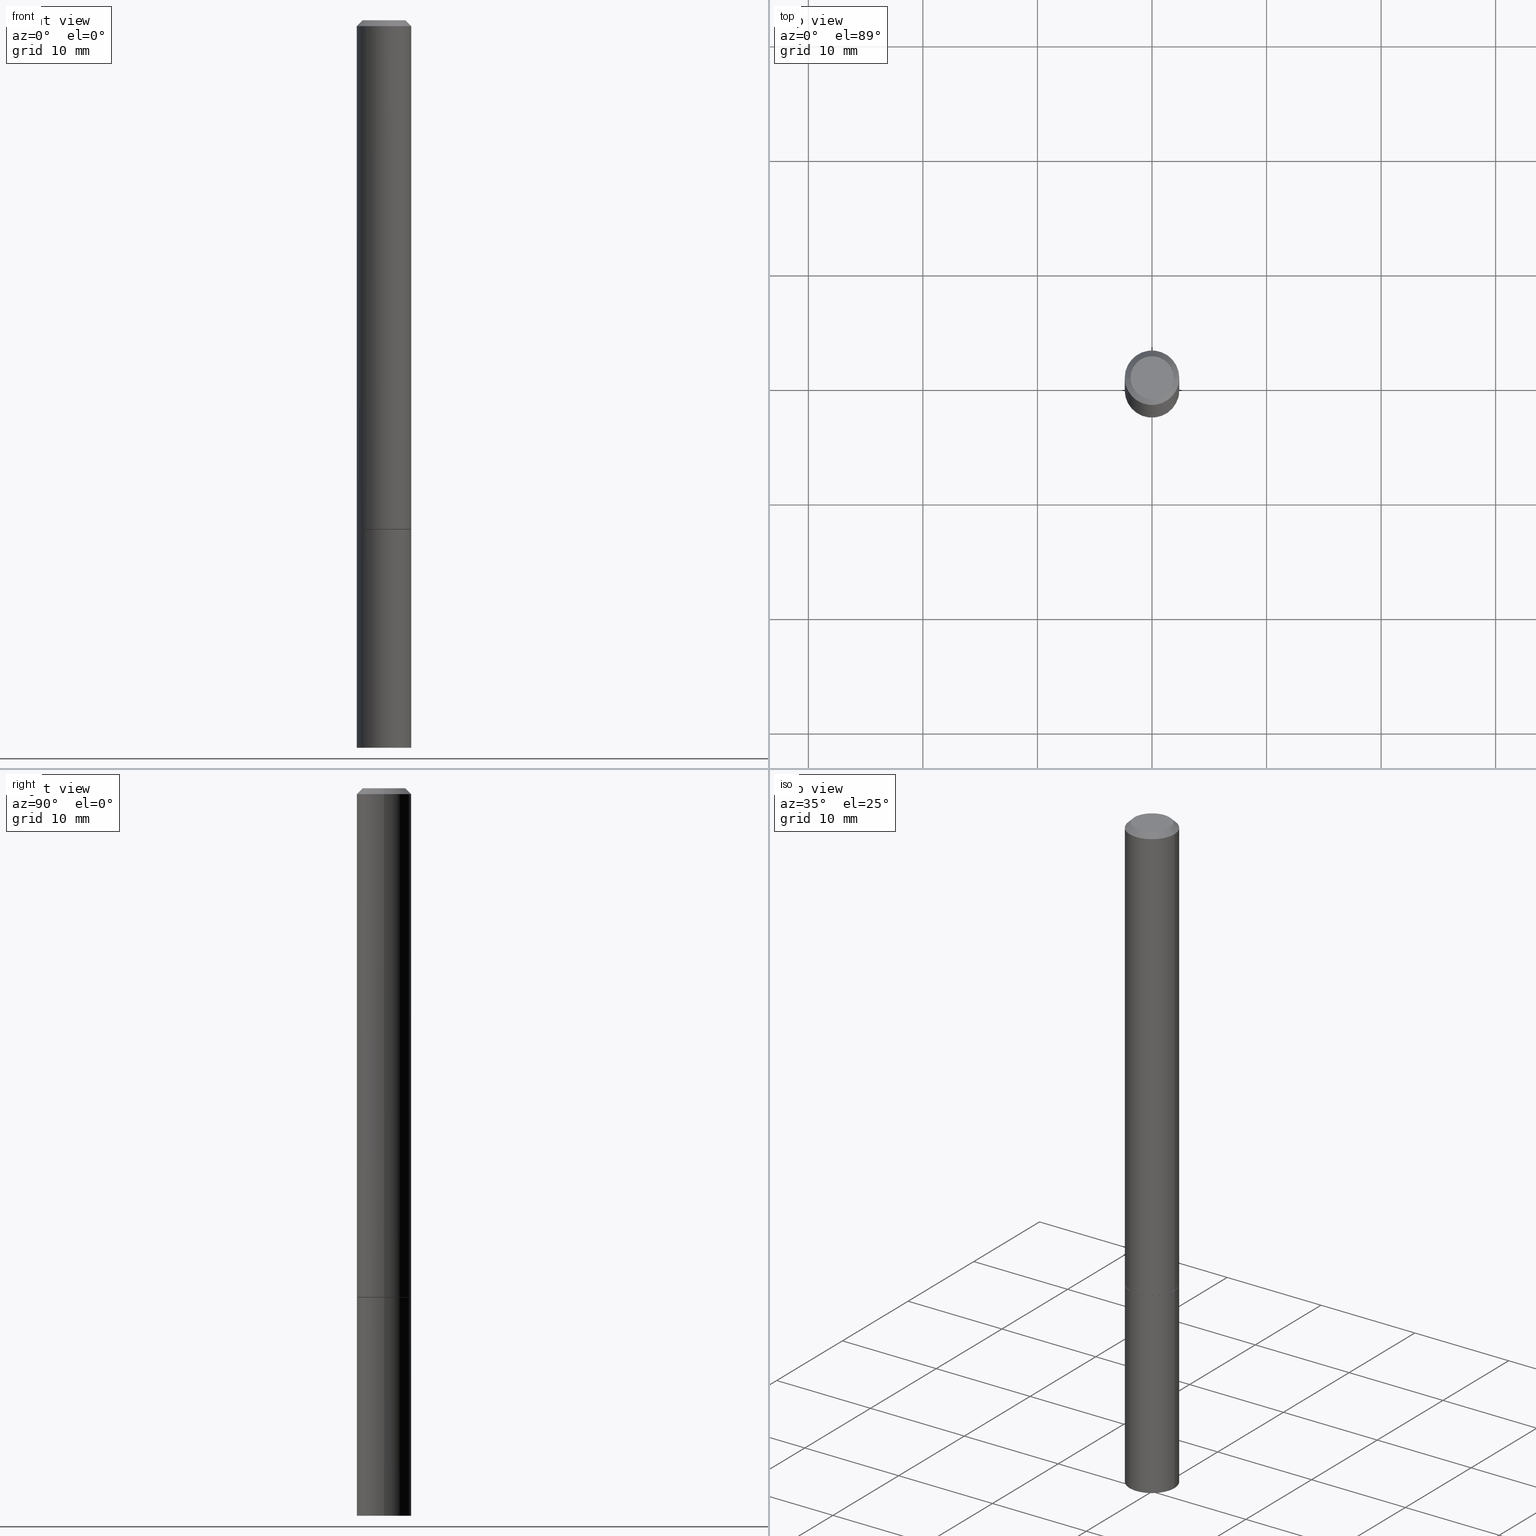
[diagram: canonical four-view strip — front | top / right | iso, engineering-drawing reading convention]
A machine part, canonical four-view strip (front | top / right | iso — engineering-drawing reading convention). The complete STEP part file that produces these views, byte-faithful:
ISO-10303-21;
HEADER;
FILE_DESCRIPTION (( 'STEP AP203' ),
    '1' );
FILE_NAME ('31738.STEP',
    '2023-03-21T20:28:32',
    ( '' ),
    ( '' ),
    'SwSTEP 2.0',
    'SolidWorks 2022',
    '' );
FILE_SCHEMA (( 'CONFIG_CONTROL_DESIGN' ));
ENDSEC;

DATA;
#1 = DIRECTION ( 'NONE',  ( -2.445468806185136597E-29, 3.491481338843145583E-15, 1.000000000000000000 ) ) ;
#2 = VECTOR ( 'NONE', #47, 39.37007874015748854 ) ;
#3 = AXIS2_PLACEMENT_3D ( 'NONE', #77, #265, #242 ) ;
#4 = APPLICATION_PROTOCOL_DEFINITION ( 'international standard', 'config_control_design', 1994, #269 ) ;
#5 = ORIENTED_EDGE ( 'NONE', *, *, #238, .T. ) ;
#6 = MECHANICAL_CONTEXT ( 'NONE', #269, 'mechanical' ) ;
#7 = VECTOR ( 'NONE', #83, 39.37007874015748143 ) ;
#8 = VERTEX_POINT ( 'NONE', #284 ) ;
#9 = ADVANCED_FACE ( 'NONE', ( #289 ), #14, .F. ) ;
#10 = APPROVAL_STATUS ( 'not_yet_approved' ) ;
#11 = ORIENTED_EDGE ( 'NONE', *, *, #185, .T. ) ;
#12 = PRODUCT_DEFINITION_SHAPE ( 'NONE', 'NONE',  #214 ) ;
#13 = PERSON_AND_ORGANIZATION_ROLE ( 'design_supplier' ) ;
#14 = PLANE ( 'NONE',  #306 ) ;
#15 = VERTEX_POINT ( 'NONE', #201 ) ;
#16 = CONICAL_SURFACE ( 'NONE', #286, 751.2258538476485228, 1.518436449235072372 ) ;
#17 = AXIS2_PLACEMENT_3D ( 'NONE', #154, #387, #354 ) ;
#18 = DIRECTION ( 'NONE',  ( 1.000000000000000000, -6.982962677686273021E-15, 0.000000000000000000 ) ) ;
#19 = FACE_OUTER_BOUND ( 'NONE', #253, .T. ) ;
#20 = DIRECTION ( 'NONE',  ( 2.445468806185136597E-29, -3.491481338843145583E-15, -1.000000000000000000 ) ) ;
#21 = CIRCLE ( 'NONE', #151, 0.09375000000000001388 ) ;
#22 = CARTESIAN_POINT ( 'NONE',  ( 4.277124942017804562E-29, -6.106600861636661664E-15, -1.749000000000000110 ) ) ;
#23 = CARTESIAN_POINT ( 'NONE',  ( 4.279570410823989044E-29, -6.110092342975505460E-15, -1.750000000000000222 ) ) ;
#24 = CARTESIAN_POINT ( 'NONE',  ( -0.09274999999999999911, -5.451063955558012544E-15, -1.750000000000000222 ) ) ;
#25 = EDGE_CURVE ( 'NONE', #15, #8, #231, .T. ) ;
#26 = CIRCLE ( 'NONE', #378, 0.07374999999999978795 ) ;
#27 = AXIS2_PLACEMENT_3D ( 'NONE', #132, #283, #135 ) ;
#28 =( NAMED_UNIT ( * ) PLANE_ANGLE_UNIT ( ) SI_UNIT ( $, .RADIAN. ) );
#29 = VERTEX_POINT ( 'NONE', #68 ) ;
#30 = EDGE_CURVE ( 'NONE', #87, #134, #220, .T. ) ;
#31 = DIRECTION ( 'NONE',  ( 1.000000000000000000, -6.982962677686272233E-15, 0.000000000000000000 ) ) ;
#32 = EDGE_CURVE ( 'NONE', #70, #287, #317, .T. ) ;
#33 =( LENGTH_UNIT ( ) NAMED_UNIT ( * ) SI_UNIT ( $, .METRE. ) );
#34 = CARTESIAN_POINT ( 'NONE',  ( 4.890937612370278413E-31, -6.982962677686297772E-17, -0.02000000000000002123 ) ) ;
#35 = CLOSED_SHELL ( 'NONE', ( #104, #316, #149, #335, #235, #155, #9, #204 ) ) ;
#36 = ORIENTED_EDGE ( 'NONE', *, *, #321, .F. ) ;
#37 = APPROVAL_DATE_TIME ( #257, #386 ) ;
#38 = ORIENTED_EDGE ( 'NONE', *, *, #98, .T. ) ;
#39 = CALENDAR_DATE ( 2023, 21, 3 ) ;
#40 = ORIENTED_EDGE ( 'NONE', *, *, #145, .F. ) ;
#41 = CC_DESIGN_PERSON_AND_ORGANIZATION_ASSIGNMENT ( #72, #199, ( #130 ) ) ;
#42 = PERSON_AND_ORGANIZATION_ROLE ( 'creator' ) ;
#43 = VECTOR ( 'NONE', #323, 39.37007874015748143 ) ;
#44 = ORIENTED_EDGE ( 'NONE', *, *, #98, .F. ) ;
#45 = CC_DESIGN_APPROVAL ( #386, ( #214 ) ) ;
#46 = CALENDAR_DATE ( 2023, 21, 3 ) ;
#47 = DIRECTION ( 'NONE',  ( 0.9986295347545742773, -7.033825938272001856E-15, -0.05233595624293820026 ) ) ;
#48 = VERTEX_POINT ( 'NONE', #170 ) ;
#49 = DIRECTION ( 'NONE',  ( -2.445468806185136597E-29, 3.491481338843145583E-15, 1.000000000000000000 ) ) ;
#50 = CONICAL_SURFACE ( 'NONE', #99, 0.09274999999999999911, 0.7853981633974141952 ) ;
#51 = CIRCLE ( 'NONE', #264, 0.09375000000000001388 ) ;
#52 = DIRECTION ( 'NONE',  ( 0.7071067811865464625, -7.319954787623252890E-15, -0.7071067811865486830 ) ) ;
#53 = CARTESIAN_POINT ( 'NONE',  ( 4.890937612370278413E-31, -6.982962677686297772E-17, -0.02000000000000002123 ) ) ;
#54 = DIRECTION ( 'NONE',  ( -1.000000000000000000, 6.982962677686267499E-15, 0.000000000000000000 ) ) ;
#55 = DIRECTION ( 'NONE',  ( 1.000000000000000000, -6.982962677686261189E-15, 0.000000000000000000 ) ) ;
#56 = CARTESIAN_POINT ( 'NONE',  ( 6.113672015462842613E-29, -8.728703347107864943E-15, -2.500000000000000000 ) ) ;
#57 = FACE_OUTER_BOUND ( 'NONE', #110, .T. ) ;
#58 = AXIS2_PLACEMENT_3D ( 'NONE', #389, #127, #334 ) ;
#59 = DIRECTION ( 'NONE',  ( 1.000000000000000000, -6.982962677686265133E-15, 4.876176775795935793E-29 ) ) ;
#60 = CYLINDRICAL_SURFACE ( 'NONE', #332, 0.09375000000000001388 ) ;
#61 = EDGE_LOOP ( 'NONE', ( #38, #192, #139, #281 ) ) ;
#62 =( NAMED_UNIT ( * ) SI_UNIT ( $, .STERADIAN. ) SOLID_ANGLE_UNIT ( ) );
#63 = ORIENTED_EDGE ( 'NONE', *, *, #349, .T. ) ;
#64 = PERSON_AND_ORGANIZATION ( #222, #379 ) ;
#65 = LOCAL_TIME ( 16, 28, 32.00000000000000000, #106 ) ;
#66 = ORIENTED_EDGE ( 'NONE', *, *, #179, .T. ) ;
#67 = CC_DESIGN_PERSON_AND_ORGANIZATION_ASSIGNMENT ( #140, #165, ( #294 ) ) ;
#68 = CARTESIAN_POINT ( 'NONE',  ( -0.07374999999999978795, 5.499083108677917680E-16, -3.723527850031183460E-30 ) ) ;
#69 = COORDINATED_UNIVERSAL_TIME_OFFSET ( 5, 0, .BEHIND. ) ;
#70 = VERTEX_POINT ( 'NONE', #197 ) ;
#71 = ADVANCED_FACE ( 'NONE', ( #164 ), #373, .F. ) ;
#72 = PERSON_AND_ORGANIZATION ( #222, #379 ) ;
#73 = ORIENTED_EDGE ( 'NONE', *, *, #30, .T. ) ;
#74 = ADVANCED_BREP_SHAPE_REPRESENTATION ( '31738', ( #310, #183, #27 ), #244 ) ;
#75 = EDGE_CURVE ( 'NONE', #290, #15, #187, .T. ) ;
#76 = CARTESIAN_POINT ( 'NONE',  ( 6.546527510331302998E-16, 0.09374999999999389377, -1.750000000000000444 ) ) ;
#77 = CARTESIAN_POINT ( 'NONE',  ( 1.023799563225607519E-27, -1.461714441287113679E-13, -41.86516551084969961 ) ) ;
#78 = LINE ( 'NONE', #322, #320 ) ;
#79 = AXIS2_PLACEMENT_3D ( 'NONE', #382, #118, #82 ) ;
#80 = PRODUCT_DEFINITION_FORMATION_WITH_SPECIFIED_SOURCE ( 'ANY', '', #294, .NOT_KNOWN. ) ;
#81 = CARTESIAN_POINT ( 'NONE',  ( 0.000000000000000000, 0.000000000000000000, 0.000000000000000000 ) ) ;
#82 = DIRECTION ( 'NONE',  ( 1.000000000000000000, -6.982962677686267499E-15, 0.000000000000000000 ) ) ;
#83 = DIRECTION ( 'NONE',  ( -0.7071067811865464625, 2.468850131082245228E-15, -0.7071067811865486830 ) ) ;
#84 = AXIS2_PLACEMENT_3D ( 'NONE', #148, #295, #18 ) ;
#85 = LOCAL_TIME ( 16, 28, 32.00000000000000000, #163 ) ;
#86 = CARTESIAN_POINT ( 'NONE',  ( 0.000000000000000000, 0.000000000000000000, 0.000000000000000000 ) ) ;
#87 = VERTEX_POINT ( 'NONE', #177 ) ;
#88 = DIRECTION ( 'NONE',  ( -2.445468806185136877E-29, 3.491481338843145188E-15, 1.000000000000000000 ) ) ;
#89 = ORIENTED_EDGE ( 'NONE', *, *, #246, .F. ) ;
#90 = CIRCLE ( 'NONE', #374, 0.09375000000000001388 ) ;
#91 = CARTESIAN_POINT ( 'NONE',  ( -0.09374999999999984734, -8.074050596074776650E-15, -2.500000000000000000 ) ) ;
#92 = ADVANCED_FACE ( 'NONE', ( #182 ), #16, .F. ) ;
#93 = ORIENTED_EDGE ( 'NONE', *, *, #120, .F. ) ;
#94 =( CONVERSION_BASED_UNIT ( 'INCH', #362 ) LENGTH_UNIT ( ) NAMED_UNIT ( #121 ) );
#95 = ORIENTED_EDGE ( 'NONE', *, *, #209, .F. ) ;
#96 = DATE_TIME_ROLE ( 'creation_date' ) ;
#97 = ORIENTED_EDGE ( 'NONE', *, *, #241, .F. ) ;
#98 = EDGE_CURVE ( 'NONE', #15, #290, #383, .T. ) ;
#99 = AXIS2_PLACEMENT_3D ( 'NONE', #263, #152, #291 ) ;
#100 = PERSON_AND_ORGANIZATION ( #222, #379 ) ;
#101 = CONICAL_SURFACE ( 'NONE', #3, 751.2258538476485228, 1.518436449235072372 ) ;
#102 = ORIENTED_EDGE ( 'NONE', *, *, #344, .T. ) ;
#103 = APPROVAL_ROLE ( '' ) ;
#104 = ADVANCED_FACE ( 'NONE', ( #347 ), #50, .T. ) ;
#105 = DIRECTION ( 'NONE',  ( 1.000000000000000000, -6.982962677686273021E-15, 0.000000000000000000 ) ) ;
#106 = COORDINATED_UNIVERSAL_TIME_OFFSET ( 5, 0, .BEHIND. ) ;
#107 = EDGE_CURVE ( 'NONE', #29, #358, #180, .T. ) ;
#108 = DIRECTION ( 'NONE',  ( 1.000000000000000000, -6.982962677686265922E-15, 4.876176775795935793E-29 ) ) ;
#109 = SECURITY_CLASSIFICATION_LEVEL ( 'unclassified' ) ;
#110 = EDGE_LOOP ( 'NONE', ( #300, #143, #141, #249 ) ) ;
#111 = AXIS2_PLACEMENT_3D ( 'NONE', #34, #159, #184 ) ;
#112 = DIRECTION ( 'NONE',  ( 1.000000000000000000, -6.982962677686261189E-15, 0.000000000000000000 ) ) ;
#113 = DIRECTION ( 'NONE',  ( 1.000000000000000000, -6.982962677686272233E-15, 0.000000000000000000 ) ) ;
#114 = CC_DESIGN_PERSON_AND_ORGANIZATION_ASSIGNMENT ( #288, #42, ( #80 ) ) ;
#115 = LINE ( 'NONE', #298, #43 ) ;
#116 = CIRCLE ( 'NONE', #79, 0.09374999999999975020 ) ;
#117 = AXIS2_PLACEMENT_3D ( 'NONE', #191, #299, #215 ) ;
#118 = DIRECTION ( 'NONE',  ( -2.445468806185136597E-29, 3.491481338843145583E-15, 1.000000000000000000 ) ) ;
#119 = PLANE ( 'NONE',  #353 ) ;
#120 = EDGE_CURVE ( 'NONE', #358, #219, #116, .T. ) ;
#121 = DIMENSIONAL_EXPONENTS ( 1.000000000000000000, 0.000000000000000000, 0.000000000000000000, 0.000000000000000000, 0.000000000000000000, 0.000000000000000000, 0.000000000000000000 ) ;
#122 = CARTESIAN_POINT ( 'NONE',  ( 4.277124942017804562E-29, -6.106600861636661664E-15, -1.749000000000000110 ) ) ;
#123 = AXIS2_PLACEMENT_3D ( 'NONE', #240, #297, #327 ) ;
#124 = LINE ( 'NONE', #276, #136 ) ;
#125 = ORIENTED_EDGE ( 'NONE', *, *, #218, .T. ) ;
#126 = EDGE_CURVE ( 'NONE', #48, #29, #26, .T. ) ;
#127 = DIRECTION ( 'NONE',  ( -2.445468806185136597E-29, 3.491481338843145583E-15, 1.000000000000000000 ) ) ;
#128 = ORIENTED_EDGE ( 'NONE', *, *, #209, .T. ) ;
#129 = VECTOR ( 'NONE', #196, 39.37007874015748854 ) ;
#130 = SECURITY_CLASSIFICATION ( '', '', #109 ) ;
#131 = CARTESIAN_POINT ( 'NONE',  ( -0.09274999999999999911, -5.445765501209790142E-15, -1.750000000000000222 ) ) ;
#132 = CARTESIAN_POINT ( 'NONE',  ( 0.000000000000000000, 0.000000000000000000, 0.000000000000000000 ) ) ;
#133 = COORDINATED_UNIVERSAL_TIME_OFFSET ( 5, 0, .BEHIND. ) ;
#134 = VERTEX_POINT ( 'NONE', #237 ) ;
#135 = DIRECTION ( 'NONE',  ( 1.000000000000000000, 0.000000000000000000, 0.000000000000000000 ) ) ;
#136 = VECTOR ( 'NONE', #270, 39.37007874015748143 ) ;
#137 = DIRECTION ( 'NONE',  ( -1.000000000000000000, 6.982962677686265922E-15, -4.876176775795935793E-29 ) ) ;
#138 = APPROVAL_STATUS ( 'not_yet_approved' ) ;
#139 = ORIENTED_EDGE ( 'NONE', *, *, #179, .F. ) ;
#140 = PERSON_AND_ORGANIZATION ( #222, #379 ) ;
#141 = ORIENTED_EDGE ( 'NONE', *, *, #107, .T. ) ;
#142 = AXIS2_PLACEMENT_3D ( 'NONE', #178, #352, #150 ) ;
#143 = ORIENTED_EDGE ( 'NONE', *, *, #349, .F. ) ;
#144 = CIRCLE ( 'NONE', #17, 0.09374999999999975020 ) ;
#145 = EDGE_CURVE ( 'NONE', #287, #134, #115, .T. ) ;
#146 = FACE_OUTER_BOUND ( 'NONE', #186, .T. ) ;
#147 = ADVANCED_FACE ( 'NONE', ( #146 ), #377, .T. ) ;
#148 = CARTESIAN_POINT ( 'NONE',  ( 4.279570410823989044E-29, -6.110092342975505460E-15, -1.750000000000000222 ) ) ;
#149 = ADVANCED_FACE ( 'NONE', ( #210 ), #200, .T. ) ;
#150 = DIRECTION ( 'NONE',  ( 1.000000000000000000, -6.982962677686273021E-15, 0.000000000000000000 ) ) ;
#151 = AXIS2_PLACEMENT_3D ( 'NONE', #56, #190, #31 ) ;
#152 = DIRECTION ( 'NONE',  ( -2.445468806185136597E-29, 3.491481338843145583E-15, 1.000000000000000000 ) ) ;
#153 = DIRECTION ( 'NONE',  ( -2.445468806185136597E-29, 3.491481338843145583E-15, 1.000000000000000000 ) ) ;
#154 = CARTESIAN_POINT ( 'NONE',  ( 4.890937612370278413E-31, -6.982962677686297772E-17, -0.02000000000000002123 ) ) ;
#155 = ADVANCED_FACE ( 'NONE', ( #350 ), #250, .T. ) ;
#156 = DIRECTION ( 'NONE',  ( -0.7071067811865232589, 7.493145998870265808E-15, 0.7071067811865715536 ) ) ;
#157 = LINE ( 'NONE', #303, #239 ) ;
#158 = CYLINDRICAL_SURFACE ( 'NONE', #166, 0.09374999999999988898 ) ;
#159 = DIRECTION ( 'NONE',  ( 2.445468806185136597E-29, -3.491481338843145583E-15, -1.000000000000000000 ) ) ;
#160 = EDGE_LOOP ( 'NONE', ( #66, #102, #365, #221 ) ) ;
#161 = APPROVAL_DATE_TIME ( #309, #168 ) ;
#162 = ORIENTED_EDGE ( 'NONE', *, *, #145, .T. ) ;
#163 = COORDINATED_UNIVERSAL_TIME_OFFSET ( 5, 0, .BEHIND. ) ;
#164 = FACE_OUTER_BOUND ( 'NONE', #251, .T. ) ;
#165 = PERSON_AND_ORGANIZATION_ROLE ( 'design_owner' ) ;
#166 = AXIS2_PLACEMENT_3D ( 'NONE', #213, #359, #59 ) ;
#167 = EDGE_LOOP ( 'NONE', ( #274, #315, #95 ) ) ;
#168 = APPROVAL ( #195, 'UNSPECIFIED' ) ;
#169 = DATE_TIME_ROLE ( 'classification_date' ) ;
#170 = CARTESIAN_POINT ( 'NONE',  ( 0.07374999999999978795, -6.094815207017957253E-16, 3.931526600461595245E-30 ) ) ;
#171 = DATE_AND_TIME ( #230, #181 ) ;
#172 = ADVANCED_FACE ( 'NONE', ( #324 ), #101, .F. ) ;
#173 = EDGE_LOOP ( 'NONE', ( #355, #229, #333, #40 ) ) ;
#174 = CLOSED_SHELL ( 'NONE', ( #245, #172, #92, #147, #71 ) ) ;
#175 = EDGE_CURVE ( 'NONE', #134, #87, #51, .T. ) ;
#176 = CARTESIAN_POINT ( 'NONE',  ( 6.113672015462842613E-29, -8.728703347107864943E-15, -2.500000000000000000 ) ) ;
#177 = CARTESIAN_POINT ( 'NONE',  ( -0.09375000000000001388, -6.753264030266591277E-15, -1.750000000000000222 ) ) ;
#178 = CARTESIAN_POINT ( 'NONE',  ( 4.279570410823989044E-29, -6.110092342975505460E-15, -1.750000000000000222 ) ) ;
#179 = EDGE_CURVE ( 'NONE', #8, #363, #326, .T. ) ;
#180 = LINE ( 'NONE', #243, #7 ) ;
#181 = LOCAL_TIME ( 16, 28, 32.00000000000000000, #371 ) ;
#182 = FACE_OUTER_BOUND ( 'NONE', #372, .T. ) ;
#183 = MANIFOLD_SOLID_BREP ( 'Body-Move/Copy2[2]', #35 ) ;
#184 = DIRECTION ( 'NONE',  ( -1.000000000000000000, 6.982962677686267499E-15, 0.000000000000000000 ) ) ;
#185 = EDGE_CURVE ( 'NONE', #363, #8, #308, .T. ) ;
#186 = EDGE_LOOP ( 'NONE', ( #89, #128, #162, #223 ) ) ;
#187 = CIRCLE ( 'NONE', #232, 0.09274999999999999911 ) ;
#188 = AXIS2_PLACEMENT_3D ( 'NONE', #53, #20, #54 ) ;
#189 = CARTESIAN_POINT ( 'NONE',  ( 0.09374999999999988898, -6.546527510330866166E-16, 4.571415727308684201E-30 ) ) ;
#190 = DIRECTION ( 'NONE',  ( -2.445468806185136597E-29, 3.491481338843145583E-15, 1.000000000000000000 ) ) ;
#191 = CARTESIAN_POINT ( 'NONE',  ( 0.000000000000000000, 0.000000000000000000, 0.000000000000000000 ) ) ;
#192 = ORIENTED_EDGE ( 'NONE', *, *, #241, .T. ) ;
#193 = AXIS2_PLACEMENT_3D ( 'NONE', #76, #311, #137 ) ;
#194 = CC_DESIGN_SECURITY_CLASSIFICATION ( #130, ( #80 ) ) ;
#195 = APPROVAL_STATUS ( 'not_yet_approved' ) ;
#196 = DIRECTION ( 'NONE',  ( 0.7071067811865232589, -2.468850131082003836E-15, 0.7071067811865715536 ) ) ;
#197 = CARTESIAN_POINT ( 'NONE',  ( 6.101550147147509967E-29, -8.711701726785852134E-15, -2.495086770692215516 ) ) ;
#198 = ORIENTED_EDGE ( 'NONE', *, *, #75, .T. ) ;
#199 = PERSON_AND_ORGANIZATION_ROLE ( 'classification_officer' ) ;
#200 = CONICAL_SURFACE ( 'NONE', #188, 0.09374999999999975020, 0.7853981633974467247 ) ;
#201 = CARTESIAN_POINT ( 'NONE',  ( 0.09274999999999999911, -6.757762131330906950E-15, -1.750000000000000222 ) ) ;
#202 = CALENDAR_DATE ( 2023, 21, 3 ) ;
#203 = ORIENTED_EDGE ( 'NONE', *, *, #32, .F. ) ;
#204 = ADVANCED_FACE ( 'NONE', ( #262 ), #119, .F. ) ;
#205 = DIRECTION ( 'NONE',  ( 2.438088387897960049E-29, -3.491481338843145188E-15, -1.000000000000000000 ) ) ;
#206 = VECTOR ( 'NONE', #217, 39.37007874015748854 ) ;
#207 = DIRECTION ( 'NONE',  ( 1.000000000000000000, -6.982962677686266711E-15, 4.876176775795936914E-29 ) ) ;
#208 = CARTESIAN_POINT ( 'NONE',  ( 1.023799563225607519E-27, -1.461714441287113679E-13, -41.86516551084969961 ) ) ;
#209 = EDGE_CURVE ( 'NONE', #390, #287, #90, .T. ) ;
#210 = FACE_OUTER_BOUND ( 'NONE', #361, .T. ) ;
#211 = DIRECTION ( 'NONE',  ( -2.445468806185136597E-29, 3.491481338843145583E-15, 1.000000000000000000 ) ) ;
#212 = LOCAL_TIME ( 16, 28, 32.00000000000000000, #69 ) ;
#213 = CARTESIAN_POINT ( 'NONE',  ( 0.000000000000000000, 0.000000000000000000, 0.000000000000000000 ) ) ;
#214 = PRODUCT_DEFINITION ( 'UNKNOWN', '', #80, #338 ) ;
#215 = DIRECTION ( 'NONE',  ( 1.000000000000000000, -6.982962677686265133E-15, 4.876176775795935793E-29 ) ) ;
#216 = ORIENTED_EDGE ( 'NONE', *, *, #25, .T. ) ;
#217 = DIRECTION ( 'NONE',  ( -0.9986295347545742773, 6.790662755453662155E-15, -0.05233595624293820026 ) ) ;
#218 = EDGE_CURVE ( 'NONE', #48, #219, #78, .T. ) ;
#219 = VERTEX_POINT ( 'NONE', #292 ) ;
#220 = CIRCLE ( 'NONE', #325, 0.09375000000000001388 ) ;
#221 = ORIENTED_EDGE ( 'NONE', *, *, #254, .F. ) ;
#222 = PERSON ( 'UNSPECIFIED', 'UNSPECIFIED', 'UNSPECIFIED', ('UNSPECIFIED'), ('UNSPECIFIED'), ('UNSPECIFIED') ) ;
#223 = ORIENTED_EDGE ( 'NONE', *, *, #30, .F. ) ;
#224 = PERSON_AND_ORGANIZATION_ROLE ( 'creator' ) ;
#225 = APPROVAL_PERSON_ORGANIZATION ( #314, #386, #103 ) ;
#226 = ORIENTED_EDGE ( 'NONE', *, *, #254, .T. ) ;
#227 = CC_DESIGN_DATE_AND_TIME_ASSIGNMENT ( #228, #96, ( #214 ) ) ;
#228 = DATE_AND_TIME ( #39, #255 ) ;
#229 = ORIENTED_EDGE ( 'NONE', *, *, #246, .T. ) ;
#230 = CALENDAR_DATE ( 2023, 21, 3 ) ;
#231 = LINE ( 'NONE', #367, #129 ) ;
#232 = AXIS2_PLACEMENT_3D ( 'NONE', #256, #370, #105 ) ;
#233 = CONICAL_SURFACE ( 'NONE', #111, 0.09374999999999975020, 0.7853981633974467247 ) ;
#234 = ORIENTED_EDGE ( 'NONE', *, *, #175, .T. ) ;
#235 = ADVANCED_FACE ( 'NONE', ( #19 ), #247, .T. ) ;
#236 = CARTESIAN_POINT ( 'NONE',  ( 1.528281196370442913E-19, -8.711548898666276345E-15, -2.495086770692215516 ) ) ;
#237 = CARTESIAN_POINT ( 'NONE',  ( 0.09375000000000001388, -6.764745094008592175E-15, -1.750000000000000222 ) ) ;
#238 = EDGE_CURVE ( 'NONE', #219, #358, #144, .T. ) ;
#239 = VECTOR ( 'NONE', #273, 39.37007874015748143 ) ;
#240 = CARTESIAN_POINT ( 'NONE',  ( 0.000000000000000000, 0.000000000000000000, 0.000000000000000000 ) ) ;
#241 = EDGE_CURVE ( 'NONE', #290, #363, #357, .T. ) ;
#242 = DIRECTION ( 'NONE',  ( -1.000000000000000000, 6.982962677686266711E-15, 0.000000000000000000 ) ) ;
#243 = CARTESIAN_POINT ( 'NONE',  ( -0.09374999999999975020, 5.848231242562228254E-16, -0.02000000000000002123 ) ) ;
#244 =( GEOMETRIC_REPRESENTATION_CONTEXT ( 3 ) GLOBAL_UNCERTAINTY_ASSIGNED_CONTEXT ( ( #275 ) ) GLOBAL_UNIT_ASSIGNED_CONTEXT ( ( #94, #28, #62 ) ) REPRESENTATION_CONTEXT ( 'NONE', 'WORKASPACE' ) );
#245 = ADVANCED_FACE ( 'NONE', ( #328 ), #60, .T. ) ;
#246 = EDGE_CURVE ( 'NONE', #390, #87, #124, .T. ) ;
#247 = CYLINDRICAL_SURFACE ( 'NONE', #117, 0.09374999999999988898 ) ;
#248 = FACE_OUTER_BOUND ( 'NONE', #160, .T. ) ;
#249 = ORIENTED_EDGE ( 'NONE', *, *, #120, .T. ) ;
#250 = CONICAL_SURFACE ( 'NONE', #142, 0.09274999999999999911, 0.7853981633974141952 ) ;
#251 = EDGE_LOOP ( 'NONE', ( #234, #73 ) ) ;
#252 = APPROVAL_DATE_TIME ( #171, #282 ) ;
#253 = EDGE_LOOP ( 'NONE', ( #388, #11, #226, #93 ) ) ;
#254 = EDGE_CURVE ( 'NONE', #8, #219, #385, .T. ) ;
#255 = LOCAL_TIME ( 16, 28, 32.00000000000000000, #133 ) ;
#256 = CARTESIAN_POINT ( 'NONE',  ( 4.279570410823989044E-29, -6.110092342975505460E-15, -1.750000000000000222 ) ) ;
#257 = DATE_AND_TIME ( #202, #65 ) ;
#258 = CARTESIAN_POINT ( 'NONE',  ( 4.279570410823989044E-29, -6.110092342975505460E-15, -1.750000000000000222 ) ) ;
#259 = CALENDAR_DATE ( 2023, 21, 3 ) ;
#260 = CARTESIAN_POINT ( 'NONE',  ( 4.279570410823989044E-29, -6.110092342975505460E-15, -1.750000000000000222 ) ) ;
#261 = EDGE_LOOP ( 'NONE', ( #97, #198, #216, #375 ) ) ;
#262 = FACE_OUTER_BOUND ( 'NONE', #279, .T. ) ;
#263 = CARTESIAN_POINT ( 'NONE',  ( 4.279570410823989044E-29, -6.110092342975505460E-15, -1.750000000000000222 ) ) ;
#264 = AXIS2_PLACEMENT_3D ( 'NONE', #23, #49, #55 ) ;
#265 = DIRECTION ( 'NONE',  ( 2.445468806185136597E-29, -3.491481338843145583E-15, -1.000000000000000000 ) ) ;
#266 = DIRECTION ( 'NONE',  ( -2.445468806185136597E-29, 3.491481338843145583E-15, 1.000000000000000000 ) ) ;
#267 = DIRECTION ( 'NONE',  ( 1.000000000000000000, -6.982962677686261189E-15, 0.000000000000000000 ) ) ;
#268 = EDGE_CURVE ( 'NONE', #70, #390, #301, .T. ) ;
#269 = APPLICATION_CONTEXT ( 'configuration controlled 3d designs of mechanical parts and assemblies' ) ;
#270 = DIRECTION ( 'NONE',  ( -2.445468806185136877E-29, 3.491481338843145188E-15, 1.000000000000000000 ) ) ;
#271 = AXIS2_PLACEMENT_3D ( 'NONE', #122, #266, #345 ) ;
#272 = CARTESIAN_POINT ( 'NONE',  ( -0.09375000000000001388, -2.422081429431664218E-15, -1.749000000000000110 ) ) ;
#273 = DIRECTION ( 'NONE',  ( -2.445468806185136877E-29, 3.491481338843145188E-15, 1.000000000000000000 ) ) ;
#274 = ORIENTED_EDGE ( 'NONE', *, *, #268, .F. ) ;
#275 = UNCERTAINTY_MEASURE_WITH_UNIT (LENGTH_MEASURE( 1.000000000000000082E-05 ), #94, 'distance_accuracy_value', 'NONE');
#276 = CARTESIAN_POINT ( 'NONE',  ( -0.09375000000000001388, 6.661338147750940229E-16, -4.611501647113973995E-30 ) ) ;
#277 = VECTOR ( 'NONE', #156, 39.37007874015748854 ) ;
#278 = CARTESIAN_POINT ( 'NONE',  ( -0.09374999999999975020, 5.848231242562228254E-16, -0.02000000000000002123 ) ) ;
#279 = EDGE_LOOP ( 'NONE', ( #63, #304 ) ) ;
#280 = APPROVAL_ROLE ( '' ) ;
#281 = ORIENTED_EDGE ( 'NONE', *, *, #25, .F. ) ;
#282 = APPROVAL ( #138, 'UNSPECIFIED' ) ;
#283 = DIRECTION ( 'NONE',  ( 0.000000000000000000, 0.000000000000000000, 1.000000000000000000 ) ) ;
#284 = CARTESIAN_POINT ( 'NONE',  ( 0.09375000000000001388, -6.761253612669749168E-15, -1.749000000000000110 ) ) ;
#285 = APPLICATION_CONTEXT ( 'configuration controlled 3d designs of mechanical parts and assemblies' ) ;
#286 = AXIS2_PLACEMENT_3D ( 'NONE', #208, #351, #380 ) ;
#287 = VERTEX_POINT ( 'NONE', #330 ) ;
#288 = PERSON_AND_ORGANIZATION ( #222, #379 ) ;
#289 = FACE_OUTER_BOUND ( 'NONE', #318, .T. ) ;
#290 = VERTEX_POINT ( 'NONE', #131 ) ;
#291 = DIRECTION ( 'NONE',  ( 1.000000000000000000, -6.982962677686273021E-15, 0.000000000000000000 ) ) ;
#292 = CARTESIAN_POINT ( 'NONE',  ( 0.09374999999999975020, -7.130013140679423114E-16, -0.02000000000000002123 ) ) ;
#293 = PRODUCT_RELATED_PRODUCT_CATEGORY ( 'detail', '', ( #294 ) ) ;
#294 = PRODUCT ( '31738', '31738', '', ( #6 ) ) ;
#295 = DIRECTION ( 'NONE',  ( -2.445468806185136597E-29, 3.491481338843145583E-15, 1.000000000000000000 ) ) ;
#296 = CIRCLE ( 'NONE', #58, 0.07374999999999978795 ) ;
#297 = DIRECTION ( 'NONE',  ( -2.445468806185136597E-29, 3.491481338843145583E-15, 1.000000000000000000 ) ) ;
#298 = CARTESIAN_POINT ( 'NONE',  ( 0.09375000000000001388, -6.546527510330875041E-16, 4.571415727308690506E-30 ) ) ;
#299 = DIRECTION ( 'NONE',  ( -2.445468806185136597E-29, 3.491481338843145583E-15, 1.000000000000000000 ) ) ;
#300 = ORIENTED_EDGE ( 'NONE', *, *, #218, .F. ) ;
#301 = LINE ( 'NONE', #329, #206 ) ;
#302 = ORIENTED_EDGE ( 'NONE', *, *, #126, .F. ) ;
#303 = CARTESIAN_POINT ( 'NONE',  ( -0.09374999999999988898, 6.661338147750931354E-16, -4.611501647113968390E-30 ) ) ;
#304 = ORIENTED_EDGE ( 'NONE', *, *, #126, .T. ) ;
#305 = DIRECTION ( 'NONE',  ( 1.000000000000000000, -6.982962677686265922E-15, 4.876176775795935793E-29 ) ) ;
#306 = AXIS2_PLACEMENT_3D ( 'NONE', #258, #343, #108 ) ;
#307 = CC_DESIGN_APPROVAL ( #282, ( #130 ) ) ;
#308 = CIRCLE ( 'NONE', #271, 0.09375000000000001388 ) ;
#309 = DATE_AND_TIME ( #259, #212 ) ;
#310 = MANIFOLD_SOLID_BREP ( 'Body-Move/Copy2[1]', #174 ) ;
#311 = DIRECTION ( 'NONE',  ( 2.438088387897960049E-29, -3.491481338843145188E-15, -1.000000000000000000 ) ) ;
#312 = DATE_AND_TIME ( #46, #85 ) ;
#313 = ORIENTED_EDGE ( 'NONE', *, *, #268, .T. ) ;
#314 = PERSON_AND_ORGANIZATION ( #222, #379 ) ;
#315 = ORIENTED_EDGE ( 'NONE', *, *, #32, .T. ) ;
#316 = ADVANCED_FACE ( 'NONE', ( #248 ), #158, .T. ) ;
#317 = LINE ( 'NONE', #236, #2 ) ;
#318 = EDGE_LOOP ( 'NONE', ( #44, #337 ) ) ;
#319 = DIRECTION ( 'NONE',  ( -1.000000000000000000, 6.982962677686265922E-15, -4.876176775795935793E-29 ) ) ;
#320 = VECTOR ( 'NONE', #52, 39.37007874015748143 ) ;
#321 = EDGE_CURVE ( 'NONE', #287, #390, #21, .T. ) ;
#322 = CARTESIAN_POINT ( 'NONE',  ( 0.09374999999999975020, -7.130013140679423114E-16, -0.02000000000000002123 ) ) ;
#323 = DIRECTION ( 'NONE',  ( -2.445468806185136877E-29, 3.491481338843145188E-15, 1.000000000000000000 ) ) ;
#324 = FACE_OUTER_BOUND ( 'NONE', #167, .T. ) ;
#325 = AXIS2_PLACEMENT_3D ( 'NONE', #260, #341, #112 ) ;
#326 = CIRCLE ( 'NONE', #368, 0.09375000000000001388 ) ;
#327 = DIRECTION ( 'NONE',  ( 1.000000000000000000, -6.982962677686265922E-15, 4.876176775795935793E-29 ) ) ;
#328 = FACE_OUTER_BOUND ( 'NONE', #173, .T. ) ;
#329 = CARTESIAN_POINT ( 'NONE',  ( -1.528281195150111589E-19, -8.711548898666276345E-15, -2.495086770692215516 ) ) ;
#330 = CARTESIAN_POINT ( 'NONE',  ( 0.09374999999999984734, -9.371875034398942871E-15, -2.500000000000000000 ) ) ;
#331 = CC_DESIGN_PERSON_AND_ORGANIZATION_ASSIGNMENT ( #336, #13, ( #80 ) ) ;
#332 = AXIS2_PLACEMENT_3D ( 'NONE', #86, #1, #305 ) ;
#333 = ORIENTED_EDGE ( 'NONE', *, *, #175, .F. ) ;
#334 = DIRECTION ( 'NONE',  ( 1.000000000000000000, -6.982962677686266711E-15, 4.876176775795936914E-29 ) ) ;
#335 = ADVANCED_FACE ( 'NONE', ( #57 ), #233, .T. ) ;
#336 = PERSON_AND_ORGANIZATION ( #222, #379 ) ;
#337 = ORIENTED_EDGE ( 'NONE', *, *, #75, .F. ) ;
#338 = DESIGN_CONTEXT ( 'detailed design', #285, 'design' ) ;
#339 = APPROVAL_ROLE ( '' ) ;
#340 = ORIENTED_EDGE ( 'NONE', *, *, #107, .F. ) ;
#341 = DIRECTION ( 'NONE',  ( -2.445468806185136597E-29, 3.491481338843145583E-15, 1.000000000000000000 ) ) ;
#342 = APPROVAL_PERSON_ORGANIZATION ( #64, #282, #280 ) ;
#343 = DIRECTION ( 'NONE',  ( -2.438088387897960049E-29, 3.491481338843145188E-15, 1.000000000000000000 ) ) ;
#344 = EDGE_CURVE ( 'NONE', #363, #358, #157, .T. ) ;
#345 = DIRECTION ( 'NONE',  ( 1.000000000000000000, -6.982962677686261189E-15, 0.000000000000000000 ) ) ;
#346 = CC_DESIGN_PERSON_AND_ORGANIZATION_ASSIGNMENT ( #364, #224, ( #214 ) ) ;
#347 = FACE_OUTER_BOUND ( 'NONE', #61, .T. ) ;
#348 = CC_DESIGN_APPROVAL ( #168, ( #80 ) ) ;
#349 = EDGE_CURVE ( 'NONE', #29, #48, #296, .T. ) ;
#350 = FACE_OUTER_BOUND ( 'NONE', #261, .T. ) ;
#351 = DIRECTION ( 'NONE',  ( 2.445468806185136597E-29, -3.491481338843145583E-15, -1.000000000000000000 ) ) ;
#352 = DIRECTION ( 'NONE',  ( -2.445468806185136597E-29, 3.491481338843145583E-15, 1.000000000000000000 ) ) ;
#353 = AXIS2_PLACEMENT_3D ( 'NONE', #381, #205, #319 ) ;
#354 = DIRECTION ( 'NONE',  ( 1.000000000000000000, -6.982962677686267499E-15, 0.000000000000000000 ) ) ;
#355 = ORIENTED_EDGE ( 'NONE', *, *, #321, .T. ) ;
#356 = CC_DESIGN_DATE_AND_TIME_ASSIGNMENT ( #312, #169, ( #130 ) ) ;
#357 = LINE ( 'NONE', #24, #277 ) ;
#358 = VERTEX_POINT ( 'NONE', #278 ) ;
#359 = DIRECTION ( 'NONE',  ( -2.445468806185136597E-29, 3.491481338843145583E-15, 1.000000000000000000 ) ) ;
#360 = APPROVAL_PERSON_ORGANIZATION ( #100, #168, #339 ) ;
#361 = EDGE_LOOP ( 'NONE', ( #302, #125, #5, #340 ) ) ;
#362 = LENGTH_MEASURE_WITH_UNIT ( LENGTH_MEASURE( 0.02539999999999999897 ), #33 );
#363 = VERTEX_POINT ( 'NONE', #272 ) ;
#364 = PERSON_AND_ORGANIZATION ( #222, #379 ) ;
#365 = ORIENTED_EDGE ( 'NONE', *, *, #238, .F. ) ;
#366 = SHAPE_DEFINITION_REPRESENTATION ( #12, #74 ) ;
#367 = CARTESIAN_POINT ( 'NONE',  ( 0.09274999999999999911, -6.757762131330906950E-15, -1.750000000000000222 ) ) ;
#368 = AXIS2_PLACEMENT_3D ( 'NONE', #22, #153, #267 ) ;
#369 = APPLICATION_PROTOCOL_DEFINITION ( 'international standard', 'config_control_design', 1994, #285 ) ;
#370 = DIRECTION ( 'NONE',  ( -2.445468806185136597E-29, 3.491481338843145583E-15, 1.000000000000000000 ) ) ;
#371 = COORDINATED_UNIVERSAL_TIME_OFFSET ( 5, 0, .BEHIND. ) ;
#372 = EDGE_LOOP ( 'NONE', ( #203, #313, #36 ) ) ;
#373 = PLANE ( 'NONE',  #193 ) ;
#374 = AXIS2_PLACEMENT_3D ( 'NONE', #176, #376, #113 ) ;
#375 = ORIENTED_EDGE ( 'NONE', *, *, #185, .F. ) ;
#376 = DIRECTION ( 'NONE',  ( -2.445468806185136597E-29, 3.491481338843145583E-15, 1.000000000000000000 ) ) ;
#377 = CYLINDRICAL_SURFACE ( 'NONE', #123, 0.09375000000000001388 ) ;
#378 = AXIS2_PLACEMENT_3D ( 'NONE', #81, #211, #207 ) ;
#379 = ORGANIZATION ( 'UNSPECIFIED', 'UNSPECIFIED', '' ) ;
#380 = DIRECTION ( 'NONE',  ( -1.000000000000000000, 6.982962677686266711E-15, 0.000000000000000000 ) ) ;
#381 = CARTESIAN_POINT ( 'NONE',  ( 5.149934974793607105E-16, 0.07374999999999978795, -2.574967487396812920E-16 ) ) ;
#382 = CARTESIAN_POINT ( 'NONE',  ( 4.890937612370278413E-31, -6.982962677686297772E-17, -0.02000000000000002123 ) ) ;
#383 = CIRCLE ( 'NONE', #84, 0.09274999999999999911 ) ;
#384 = VECTOR ( 'NONE', #88, 39.37007874015748143 ) ;
#385 = LINE ( 'NONE', #189, #384 ) ;
#386 = APPROVAL ( #10, 'UNSPECIFIED' ) ;
#387 = DIRECTION ( 'NONE',  ( -2.445468806185136597E-29, 3.491481338843145583E-15, 1.000000000000000000 ) ) ;
#388 = ORIENTED_EDGE ( 'NONE', *, *, #344, .F. ) ;
#389 = CARTESIAN_POINT ( 'NONE',  ( 0.000000000000000000, 0.000000000000000000, 0.000000000000000000 ) ) ;
#390 = VERTEX_POINT ( 'NONE', #91 ) ;
ENDSEC;
END-ISO-10303-21;
